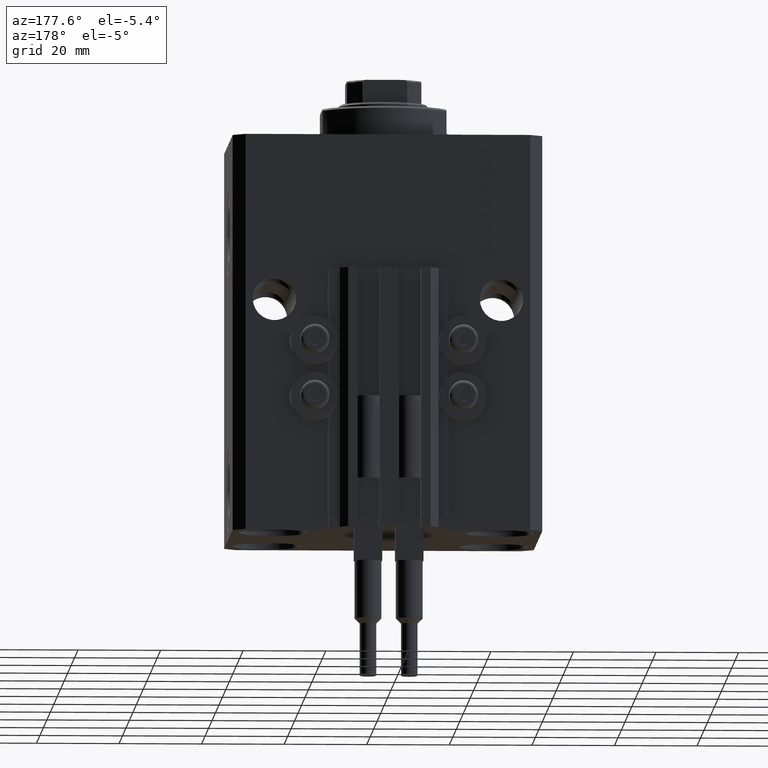
[diagram: clean part render]
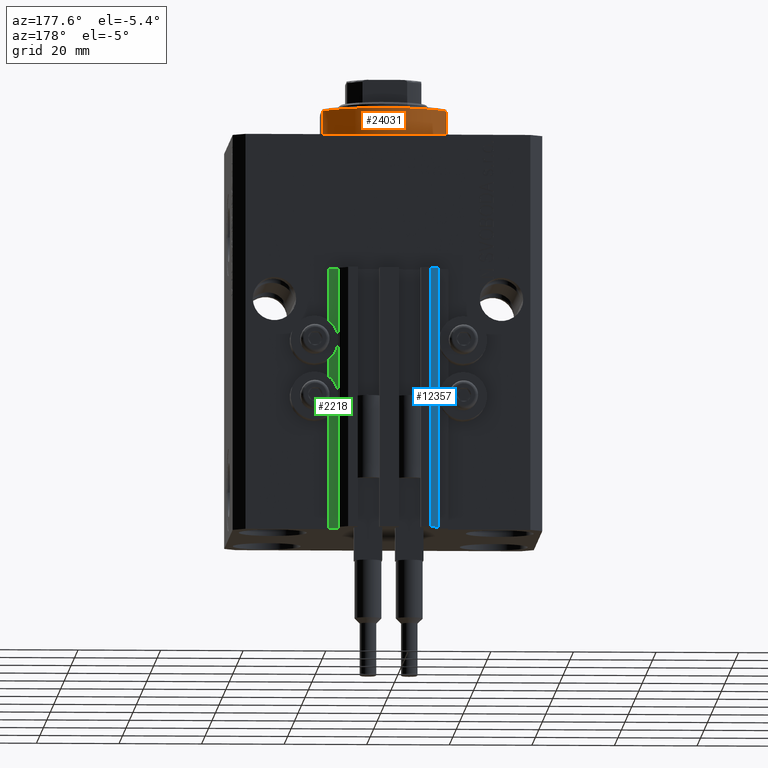
[diagram: same view with three faces highlighted in distinct colors, each labeled with its STEP entity id]
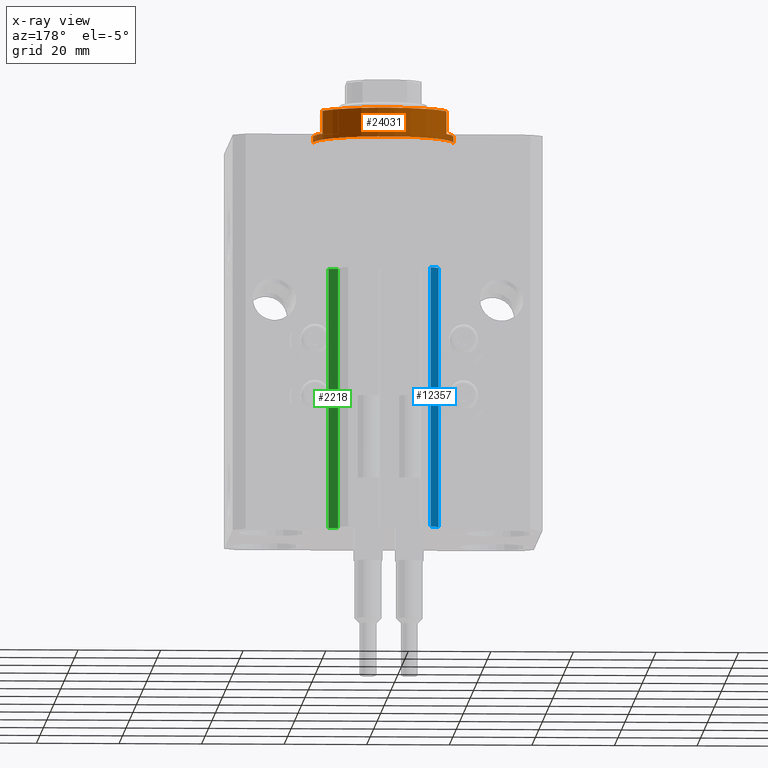
[diagram: x-ray of the same camera — body ghosted, the three highlighted faces saturated]
A machine part, auxiliary view with three faces highlighted in distinct colors.
The next image is the same camera in x-ray (body ghosted, the three faces saturated) — at least one of them is partly hidden behind the body in this view.
Their STEP definitions:

[orange] entity #24031 — the highlighted cylindrical surface (partial cylindrical patch) has radius 17 mm, axis along (0, 0, -1).
#79 = AXIS2_PLACEMENT_3D ( 'NONE', #45144, #45380, #20045 ) ;
#1153 = ORIENTED_EDGE ( 'NONE', *, *, #16303, .F. ) ;
#1250 = AXIS2_PLACEMENT_3D ( 'NONE', #10540, #33205, #44156 ) ;
#1398 = ORIENTED_EDGE ( 'NONE', *, *, #39727, .T. ) ;
#1812 = DIRECTION ( 'NONE',  ( -1.000000000000000000, 0.000000000000000000, 0.000000000000000000 ) ) ;
#2320 = EDGE_CURVE ( 'NONE', #28715, #40784, #42588, .T. ) ;
#2588 = VERTEX_POINT ( 'NONE', #38073 ) ;
#2883 = EDGE_CURVE ( 'NONE', #41913, #40784, #43277, .T. ) ;
#3059 = CARTESIAN_POINT ( 'NONE',  ( -15.00000000000000000, 8.000000000000001776, -7.500000000000007105 ) ) ;
#3446 = CARTESIAN_POINT ( 'NONE',  ( 15.00000000000000000, 8.000000000000001776, -8.000000000000000000 ) ) ;
#4313 = ORIENTED_EDGE ( 'NONE', *, *, #2320, .T. ) ;
#5451 = CARTESIAN_POINT ( 'NONE',  ( 17.00000000000000000, 0.000000000000000000, -8.000000000000000000 ) ) ;
#6481 = LINE ( 'NONE', #21335, #32544 ) ;
#6910 = CIRCLE ( 'NONE', #20125, 17.00000000000000000 ) ;
#7213 = EDGE_CURVE ( 'NONE', #41913, #2588, #6481, .T. ) ;
#7588 = LINE ( 'NONE', #3446, #19475 ) ;
#8733 = CARTESIAN_POINT ( 'NONE',  ( -15.00000000000000000, 8.000000000000001776, -8.000000000000000000 ) ) ;
#9341 = LINE ( 'NONE', #5451, #26368 ) ;
#9785 = ORIENTED_EDGE ( 'NONE', *, *, #7213, .T. ) ;
#10540 = CARTESIAN_POINT ( 'NONE',  ( 0.000000000000000000, 0.000000000000000000, -2.000000000000000000 ) ) ;
#10563 = VERTEX_POINT ( 'NONE', #33041 ) ;
#10990 = DIRECTION ( 'NONE',  ( -0.000000000000000000, -0.000000000000000000, 1.000000000000000000 ) ) ;
#14306 = CARTESIAN_POINT ( 'NONE',  ( 17.00000000000000000, 0.000000000000000000, -0.5000000000000004441 ) ) ;
#15218 = CARTESIAN_POINT ( 'NONE',  ( 0.000000000000000000, 0.000000000000000000, -7.500000000000007105 ) ) ;
#15957 = ORIENTED_EDGE ( 'NONE', *, *, #2883, .F. ) ;
#16303 = EDGE_CURVE ( 'NONE', #10563, #16479, #7588, .T. ) ;
#16479 = VERTEX_POINT ( 'NONE', #38500 ) ;
#17504 = EDGE_CURVE ( 'NONE', #2588, #26976, #28075, .T. ) ;
#18122 = CARTESIAN_POINT ( 'NONE',  ( 0.000000000000000000, 0.000000000000000000, -8.000000000000000000 ) ) ;
#18146 = DIRECTION ( 'NONE',  ( -0.000000000000000000, -0.000000000000000000, 1.000000000000000000 ) ) ;
#19475 = VECTOR ( 'NONE', #10990, 1000.000000000000000 ) ;
#20045 = DIRECTION ( 'NONE',  ( 1.000000000000000000, 0.000000000000000000, 0.000000000000000000 ) ) ;
#20125 = AXIS2_PLACEMENT_3D ( 'NONE', #15218, #44927, #22770 ) ;
#21335 = CARTESIAN_POINT ( 'NONE',  ( -17.00000000000000000, 2.081899558550500280E-15, -8.000000000000000000 ) ) ;
#22770 = DIRECTION ( 'NONE',  ( -1.000000000000000000, 0.000000000000000000, 0.000000000000000000 ) ) ;
#24031 = ADVANCED_FACE ( 'NONE', ( #43947 ), #36661, .T. ) ;
#24619 = VECTOR ( 'NONE', #34817, 1000.000000000000000 ) ;
#26368 = VECTOR ( 'NONE', #38834, 1000.000000000000000 ) ;
#26976 = VERTEX_POINT ( 'NONE', #14306 ) ;
#27400 = DIRECTION ( 'NONE',  ( 0.000000000000000000, 0.000000000000000000, -1.000000000000000000 ) ) ;
#27784 = CARTESIAN_POINT ( 'NONE',  ( 17.00000000000000000, 0.000000000000000000, -2.000000000000000000 ) ) ;
#28075 = CIRCLE ( 'NONE', #79, 17.00000000000000000 ) ;
#28715 = VERTEX_POINT ( 'NONE', #3059 ) ;
#29317 = CARTESIAN_POINT ( 'NONE',  ( -14.99999999999999645, 8.000000000000003553, -2.000000000000000000 ) ) ;
#32544 = VECTOR ( 'NONE', #18146, 1000.000000000000000 ) ;
#32747 = ORIENTED_EDGE ( 'NONE', *, *, #17504, .T. ) ;
#32973 = AXIS2_PLACEMENT_3D ( 'NONE', #18122, #32989, #47850 ) ;
#32989 = DIRECTION ( 'NONE',  ( -0.000000000000000000, -0.000000000000000000, 1.000000000000000000 ) ) ;
#33041 = CARTESIAN_POINT ( 'NONE',  ( 15.00000000000000000, 8.000000000000001776, -7.500000000000007105 ) ) ;
#33205 = DIRECTION ( 'NONE',  ( 0.000000000000000000, 0.000000000000000000, -1.000000000000000000 ) ) ;
#34395 = EDGE_CURVE ( 'NONE', #16479, #47789, #44848, .T. ) ;
#34477 = CARTESIAN_POINT ( 'NONE',  ( 0.000000000000000000, 0.000000000000000000, -2.000000000000000000 ) ) ;
#34817 = DIRECTION ( 'NONE',  ( -0.000000000000000000, -0.000000000000000000, 1.000000000000000000 ) ) ;
#36661 = CYLINDRICAL_SURFACE ( 'NONE', #32973, 17.00000000000000000 ) ;
#38073 = CARTESIAN_POINT ( 'NONE',  ( -17.00000000000000000, 2.081899558550500280E-15, -0.5000000000000004441 ) ) ;
#38500 = CARTESIAN_POINT ( 'NONE',  ( 14.99999999999999645, 8.000000000000003553, -2.000000000000000000 ) ) ;
#38834 = DIRECTION ( 'NONE',  ( -0.000000000000000000, -0.000000000000000000, 1.000000000000000000 ) ) ;
#39727 = EDGE_CURVE ( 'NONE', #10563, #28715, #6910, .T. ) ;
#39932 = EDGE_CURVE ( 'NONE', #47789, #26976, #9341, .T. ) ;
#40784 = VERTEX_POINT ( 'NONE', #29317 ) ;
#40897 = ORIENTED_EDGE ( 'NONE', *, *, #39932, .F. ) ;
#41521 = CARTESIAN_POINT ( 'NONE',  ( -17.00000000000000000, 2.081899558550500280E-15, -2.000000000000000000 ) ) ;
#41913 = VERTEX_POINT ( 'NONE', #41521 ) ;
#42540 = ORIENTED_EDGE ( 'NONE', *, *, #34395, .F. ) ;
#42588 = LINE ( 'NONE', #8733, #24619 ) ;
#43277 = CIRCLE ( 'NONE', #1250, 17.00000000000000000 ) ;
#43947 = FACE_OUTER_BOUND ( 'NONE', #46142, .T. ) ;
#44156 = DIRECTION ( 'NONE',  ( -1.000000000000000000, 0.000000000000000000, 0.000000000000000000 ) ) ;
#44848 = CIRCLE ( 'NONE', #45605, 17.00000000000000000 ) ;
#44927 = DIRECTION ( 'NONE',  ( 0.000000000000000000, 0.000000000000000000, 1.000000000000000000 ) ) ;
#45144 = CARTESIAN_POINT ( 'NONE',  ( 0.000000000000000000, 0.000000000000000000, -0.5000000000000004441 ) ) ;
#45380 = DIRECTION ( 'NONE',  ( -0.000000000000000000, -0.000000000000000000, -1.000000000000000000 ) ) ;
#45605 = AXIS2_PLACEMENT_3D ( 'NONE', #34477, #27400, #1812 ) ;
#46142 = EDGE_LOOP ( 'NONE', ( #15957, #9785, #32747, #40897, #42540, #1153, #1398, #4313 ) ) ;
#47789 = VERTEX_POINT ( 'NONE', #27784 ) ;
#47850 = DIRECTION ( 'NONE',  ( 1.000000000000000000, 0.000000000000000000, 0.000000000000000000 ) ) ;

[blue] entity #12357 — the highlighted planar face has unit normal (-0.7071, 0.7071, 0).
#345 = DIRECTION ( 'NONE',  ( -0.7071067811865460184, -0.7071067811865490160, 0.000000000000000000 ) ) ;
#475 = VECTOR ( 'NONE', #33931, 1000.000000000000227 ) ;
#2083 = CARTESIAN_POINT ( 'NONE',  ( -12.00000000000000000, 33.49999999999998579, -96.00000000000000000 ) ) ;
#5104 = CARTESIAN_POINT ( 'NONE',  ( -10.00000000000000000, 35.50000000000000000, -96.00000000000000000 ) ) ;
#5715 = PLANE ( 'NONE',  #33859 ) ;
#6233 = LINE ( 'NONE', #2083, #17156 ) ;
#6905 = LINE ( 'NONE', #18349, #475 ) ;
#7378 = DIRECTION ( 'NONE',  ( 0.000000000000000000, 0.000000000000000000, 1.000000000000000000 ) ) ;
#7532 = CARTESIAN_POINT ( 'NONE',  ( -12.00000000000000000, 33.49999999999998579, -96.00000000000000000 ) ) ;
#8910 = EDGE_CURVE ( 'NONE', #34107, #41593, #18583, .T. ) ;
#9595 = DIRECTION ( 'NONE',  ( -0.7071067811865460184, -0.7071067811865490160, 0.000000000000000000 ) ) ;
#10815 = VECTOR ( 'NONE', #7378, 1000.000000000000000 ) ;
#12357 = ADVANCED_FACE ( 'NONE', ( #21297 ), #5715, .T. ) ;
#15528 = CARTESIAN_POINT ( 'NONE',  ( -10.00000000000000000, 35.50000000000000000, -33.00000000000000000 ) ) ;
#17156 = VECTOR ( 'NONE', #35235, 1000.000000000000000 ) ;
#17645 = CARTESIAN_POINT ( 'NONE',  ( -10.00000000000000000, 35.50000000000000000, -96.00000000000000000 ) ) ;
#18349 = CARTESIAN_POINT ( 'NONE',  ( -10.00000000000000000, 35.50000000000000000, -96.00000000000000000 ) ) ;
#18583 = LINE ( 'NONE', #40750, #10815 ) ;
#19099 = CARTESIAN_POINT ( 'NONE',  ( -10.00000000000000000, 35.50000000000000000, -33.00000000000000000 ) ) ;
#21297 = FACE_OUTER_BOUND ( 'NONE', #22892, .T. ) ;
#21682 = EDGE_CURVE ( 'NONE', #41593, #36756, #22287, .T. ) ;
#22287 = LINE ( 'NONE', #19099, #39892 ) ;
#22780 = ORIENTED_EDGE ( 'NONE', *, *, #8910, .F. ) ;
#22892 = EDGE_LOOP ( 'NONE', ( #43344, #22780, #35231, #26197 ) ) ;
#26197 = ORIENTED_EDGE ( 'NONE', *, *, #45643, .T. ) ;
#33806 = EDGE_CURVE ( 'NONE', #34107, #45193, #6905, .T. ) ;
#33859 = AXIS2_PLACEMENT_3D ( 'NONE', #17645, #42986, #9595 ) ;
#33931 = DIRECTION ( 'NONE',  ( -0.7071067811865460184, -0.7071067811865490160, 0.000000000000000000 ) ) ;
#34107 = VERTEX_POINT ( 'NONE', #5104 ) ;
#35231 = ORIENTED_EDGE ( 'NONE', *, *, #33806, .T. ) ;
#35235 = DIRECTION ( 'NONE',  ( 0.000000000000000000, 0.000000000000000000, 1.000000000000000000 ) ) ;
#36756 = VERTEX_POINT ( 'NONE', #38245 ) ;
#38245 = CARTESIAN_POINT ( 'NONE',  ( -12.00000000000000000, 33.49999999999998579, -33.00000000000000000 ) ) ;
#39892 = VECTOR ( 'NONE', #345, 1000.000000000000227 ) ;
#40750 = CARTESIAN_POINT ( 'NONE',  ( -10.00000000000000000, 35.50000000000000000, -96.00000000000000000 ) ) ;
#41593 = VERTEX_POINT ( 'NONE', #15528 ) ;
#42986 = DIRECTION ( 'NONE',  ( -0.7071067811865490160, 0.7071067811865460184, 0.000000000000000000 ) ) ;
#43344 = ORIENTED_EDGE ( 'NONE', *, *, #21682, .F. ) ;
#45193 = VERTEX_POINT ( 'NONE', #7532 ) ;
#45643 = EDGE_CURVE ( 'NONE', #45193, #36756, #6233, .T. ) ;

[green] entity #2218 — the highlighted planar face has unit normal (0, 1, 0).
#323 = ORIENTED_EDGE ( 'NONE', *, *, #28529, .F. ) ;
#780 = VERTEX_POINT ( 'NONE', #37903 ) ;
#1796 = CARTESIAN_POINT ( 'NONE',  ( 14.49999999999999645, 30.00000000000002487, -33.00000000000000000 ) ) ;
#2107 = CARTESIAN_POINT ( 'NONE',  ( 14.49999999999999645, 30.00000000000002487, -96.00000000000000000 ) ) ;
#2218 = ADVANCED_FACE ( 'NONE', ( #33432 ), #29062, .T. ) ;
#2316 = LINE ( 'NONE', #9859, #39886 ) ;
#6247 = VECTOR ( 'NONE', #9566, 1000.000000000000000 ) ;
#8161 = ORIENTED_EDGE ( 'NONE', *, *, #45942, .T. ) ;
#8461 = VERTEX_POINT ( 'NONE', #1796 ) ;
#8868 = ORIENTED_EDGE ( 'NONE', *, *, #15938, .T. ) ;
#9566 = DIRECTION ( 'NONE',  ( -1.000000000000000000, 0.000000000000000000, 0.000000000000000000 ) ) ;
#9859 = CARTESIAN_POINT ( 'NONE',  ( 12.20000000000000107, 30.00000000000002487, -96.00000000000000000 ) ) ;
#11291 = VECTOR ( 'NONE', #24527, 1000.000000000000000 ) ;
#14022 = DIRECTION ( 'NONE',  ( -1.000000000000000000, 0.000000000000000000, 0.000000000000000000 ) ) ;
#15458 = VECTOR ( 'NONE', #14022, 1000.000000000000000 ) ;
#15938 = EDGE_CURVE ( 'NONE', #40275, #780, #2316, .T. ) ;
#16814 = AXIS2_PLACEMENT_3D ( 'NONE', #41854, #21987, #25887 ) ;
#17807 = CARTESIAN_POINT ( 'NONE',  ( 12.20000000000000107, 30.00000000000002487, -96.00000000000000000 ) ) ;
#18700 = CARTESIAN_POINT ( 'NONE',  ( 14.49999999999999645, 30.00000000000002487, -96.00000000000000000 ) ) ;
#20787 = CARTESIAN_POINT ( 'NONE',  ( 14.49999999999999645, 30.00000000000002487, -96.00000000000000000 ) ) ;
#21987 = DIRECTION ( 'NONE',  ( 0.000000000000000000, 1.000000000000000000, -0.000000000000000000 ) ) ;
#24451 = LINE ( 'NONE', #20787, #6247 ) ;
#24527 = DIRECTION ( 'NONE',  ( 0.000000000000000000, 0.000000000000000000, 1.000000000000000000 ) ) ;
#25887 = DIRECTION ( 'NONE',  ( 0.000000000000000000, 0.000000000000000000, 1.000000000000000000 ) ) ;
#28529 = EDGE_CURVE ( 'NONE', #39484, #8461, #36224, .T. ) ;
#29062 = PLANE ( 'NONE',  #16814 ) ;
#31305 = ORIENTED_EDGE ( 'NONE', *, *, #39575, .F. ) ;
#32150 = EDGE_LOOP ( 'NONE', ( #31305, #323, #8161, #8868 ) ) ;
#33432 = FACE_OUTER_BOUND ( 'NONE', #32150, .T. ) ;
#35712 = DIRECTION ( 'NONE',  ( 0.000000000000000000, 0.000000000000000000, 1.000000000000000000 ) ) ;
#36219 = LINE ( 'NONE', #47405, #15458 ) ;
#36224 = LINE ( 'NONE', #2107, #11291 ) ;
#37903 = CARTESIAN_POINT ( 'NONE',  ( 12.20000000000000107, 30.00000000000002487, -33.00000000000000000 ) ) ;
#39484 = VERTEX_POINT ( 'NONE', #18700 ) ;
#39575 = EDGE_CURVE ( 'NONE', #8461, #780, #36219, .T. ) ;
#39886 = VECTOR ( 'NONE', #35712, 1000.000000000000000 ) ;
#40275 = VERTEX_POINT ( 'NONE', #17807 ) ;
#41854 = CARTESIAN_POINT ( 'NONE',  ( 14.49999999999999645, 30.00000000000002487, -96.00000000000000000 ) ) ;
#45942 = EDGE_CURVE ( 'NONE', #39484, #40275, #24451, .T. ) ;
#47405 = CARTESIAN_POINT ( 'NONE',  ( 14.49999999999999645, 30.00000000000002487, -33.00000000000000000 ) ) ;